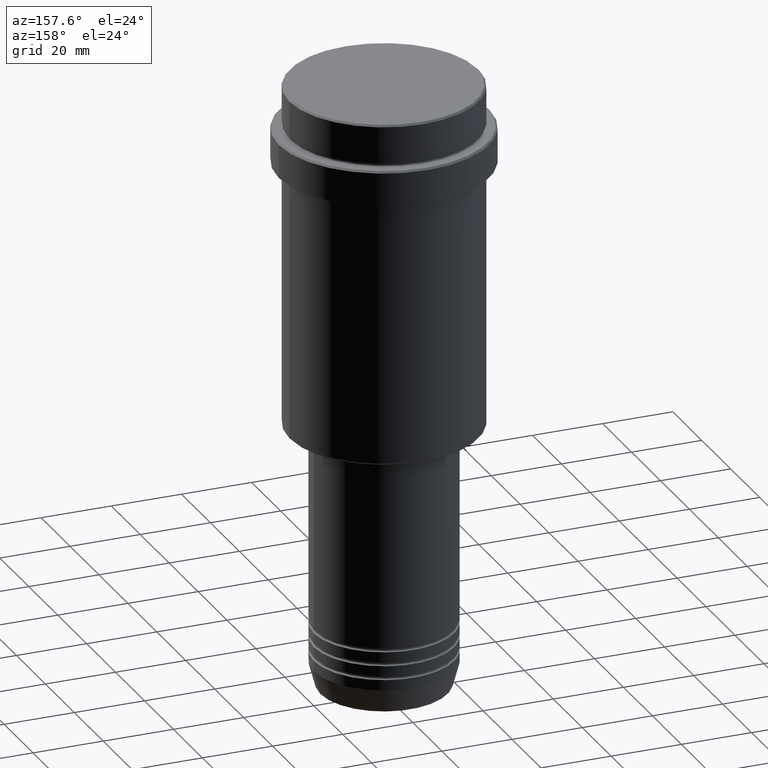
[diagram: clean part render]
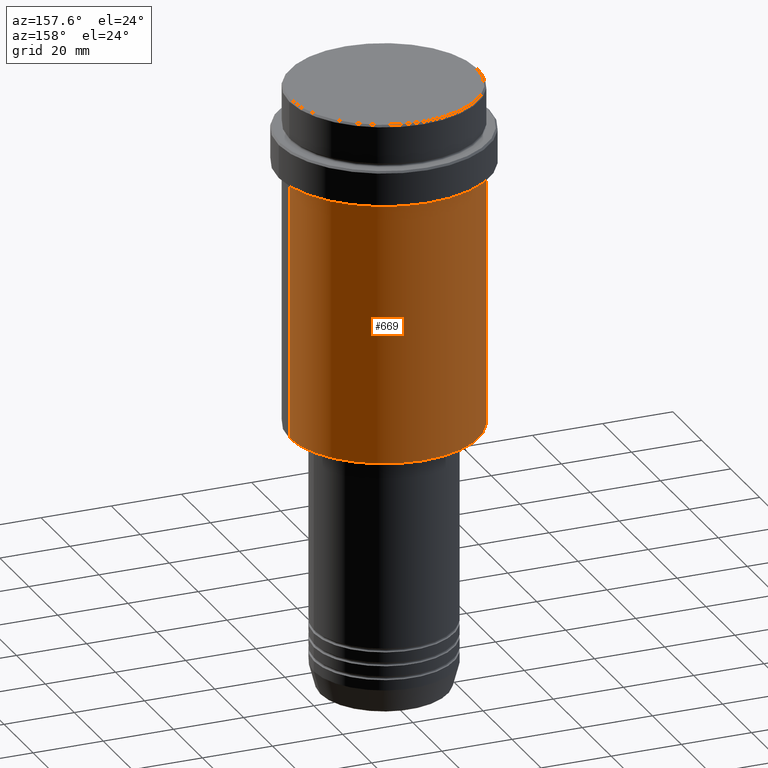
[diagram: same view with one face highlighted and labeled with its STEP entity id]
A machine part, auxiliary view. The second image highlights one B-rep face of the part: STEP entity #669.
In plain terms, the highlighted cylindrical surface (partial cylindrical patch) has radius 27 mm, axis along (-0, -0, 1).
Its self-contained STEP definition (entity closure, byte-faithful):
#14 = CARTESIAN_POINT ( 'NONE',  ( -26.99999999999999645, 3.306546357697853339E-15, -97.49999999999997158 ) ) ;
#47 = EDGE_CURVE ( 'NONE', #985, #1368, #205, .T. ) ;
#79 = CARTESIAN_POINT ( 'NONE',  ( 26.99999999999999645, 0.000000000000000000, -23.00000000000000000 ) ) ;
#92 = VECTOR ( 'NONE', #1076, 1000.000000000000000 ) ;
#141 = DIRECTION ( 'NONE',  ( 1.000000000000000000, 0.000000000000000000, 0.000000000000000000 ) ) ;
#153 = DIRECTION ( 'NONE',  ( -0.000000000000000000, -0.000000000000000000, 1.000000000000000000 ) ) ;
#154 = CARTESIAN_POINT ( 'NONE',  ( 26.99999999999999645, 0.000000000000000000, -97.49999999999997158 ) ) ;
#205 = LINE ( 'NONE', #644, #92 ) ;
#251 = VERTEX_POINT ( 'NONE', #154 ) ;
#296 = CIRCLE ( 'NONE', #1207, 26.99999999999999645 ) ;
#325 = DIRECTION ( 'NONE',  ( -0.000000000000000000, -0.000000000000000000, 1.000000000000000000 ) ) ;
#354 = CYLINDRICAL_SURFACE ( 'NONE', #409, 26.99999999999999645 ) ;
#409 = AXIS2_PLACEMENT_3D ( 'NONE', #791, #153, #141 ) ;
#485 = EDGE_CURVE ( 'NONE', #809, #1368, #1371, .T. ) ;
#536 = ORIENTED_EDGE ( 'NONE', *, *, #783, .F. ) ;
#549 = CARTESIAN_POINT ( 'NONE',  ( 0.000000000000000000, 0.000000000000000000, -23.00000000000000000 ) ) ;
#580 = CARTESIAN_POINT ( 'NONE',  ( 0.000000000000000000, 0.000000000000000000, -97.49999999999997158 ) ) ;
#644 = CARTESIAN_POINT ( 'NONE',  ( -26.99999999999999645, 3.306546357697853339E-15, 0.000000000000000000 ) ) ;
#656 = ORIENTED_EDGE ( 'NONE', *, *, #677, .T. ) ;
#669 = ADVANCED_FACE ( 'NONE', ( #694 ), #354, .T. ) ;
#677 = EDGE_CURVE ( 'NONE', #251, #985, #296, .T. ) ;
#682 = DIRECTION ( 'NONE',  ( -0.000000000000000000, -0.000000000000000000, 1.000000000000000000 ) ) ;
#694 = FACE_OUTER_BOUND ( 'NONE', #1187, .T. ) ;
#714 = CARTESIAN_POINT ( 'NONE',  ( 26.99999999999999645, 0.000000000000000000, 0.000000000000000000 ) ) ;
#783 = EDGE_CURVE ( 'NONE', #251, #809, #1151, .T. ) ;
#791 = CARTESIAN_POINT ( 'NONE',  ( 0.000000000000000000, 0.000000000000000000, 0.000000000000000000 ) ) ;
#809 = VERTEX_POINT ( 'NONE', #79 ) ;
#822 = ORIENTED_EDGE ( 'NONE', *, *, #47, .T. ) ;
#840 = AXIS2_PLACEMENT_3D ( 'NONE', #549, #325, #1087 ) ;
#957 = DIRECTION ( 'NONE',  ( -0.000000000000000000, -0.000000000000000000, 1.000000000000000000 ) ) ;
#985 = VERTEX_POINT ( 'NONE', #14 ) ;
#1000 = VECTOR ( 'NONE', #957, 1000.000000000000000 ) ;
#1076 = DIRECTION ( 'NONE',  ( -0.000000000000000000, -0.000000000000000000, 1.000000000000000000 ) ) ;
#1087 = DIRECTION ( 'NONE',  ( 1.000000000000000000, 0.000000000000000000, 0.000000000000000000 ) ) ;
#1139 = DIRECTION ( 'NONE',  ( -1.000000000000000000, 0.000000000000000000, 0.000000000000000000 ) ) ;
#1151 = LINE ( 'NONE', #714, #1000 ) ;
#1187 = EDGE_LOOP ( 'NONE', ( #656, #822, #1281, #536 ) ) ;
#1207 = AXIS2_PLACEMENT_3D ( 'NONE', #580, #682, #1139 ) ;
#1219 = CARTESIAN_POINT ( 'NONE',  ( -26.99999999999999645, 3.306546357697853339E-15, -23.00000000000000000 ) ) ;
#1281 = ORIENTED_EDGE ( 'NONE', *, *, #485, .F. ) ;
#1368 = VERTEX_POINT ( 'NONE', #1219 ) ;
#1371 = CIRCLE ( 'NONE', #840, 26.99999999999999645 ) ;